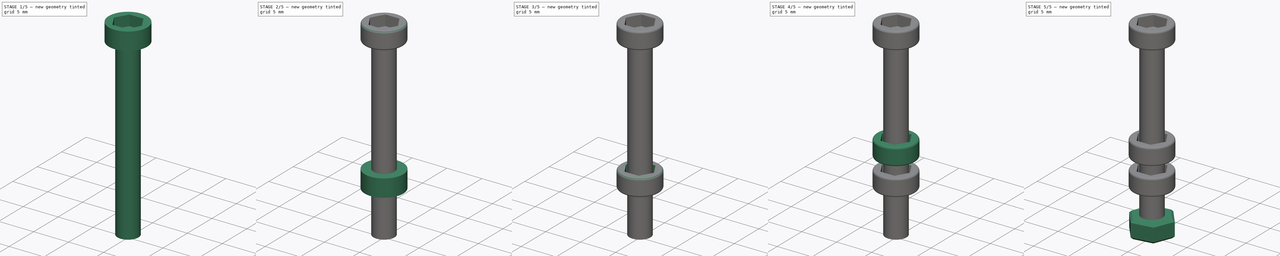
[diagram: build sequence overview — one tinted view per stage of 5, left to right]
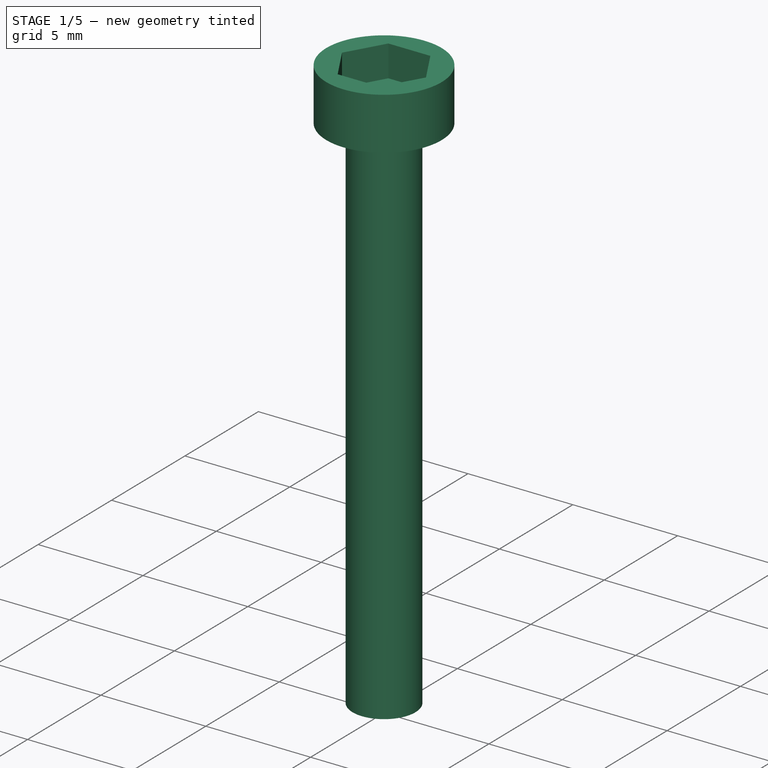
[diagram: stage 1 of 5 — iso view after this stage's code; geometry added in this stage tinted green]
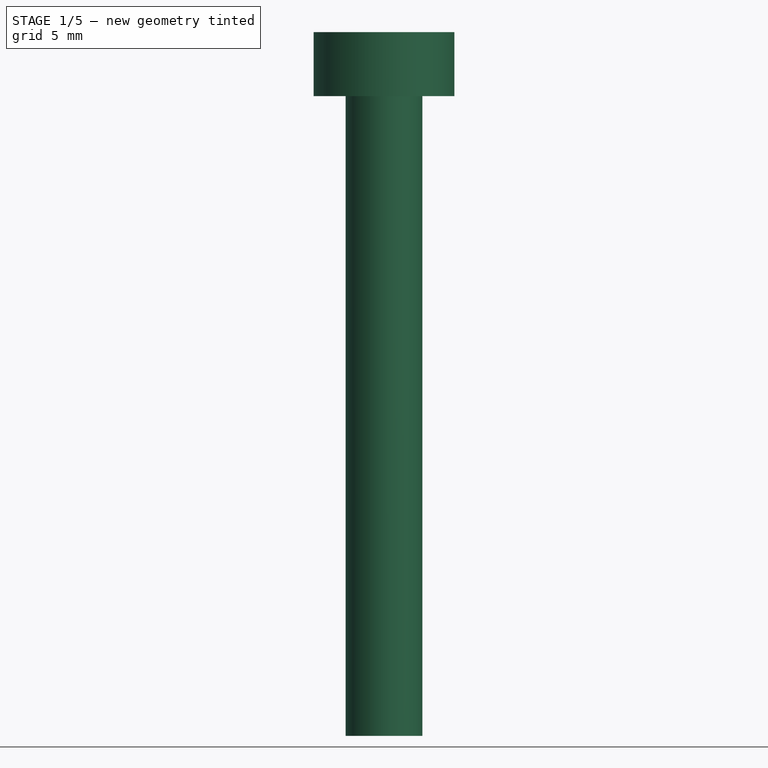
[diagram: stage 1 of 5 — front view after this stage's code; geometry added in this stage tinted green]
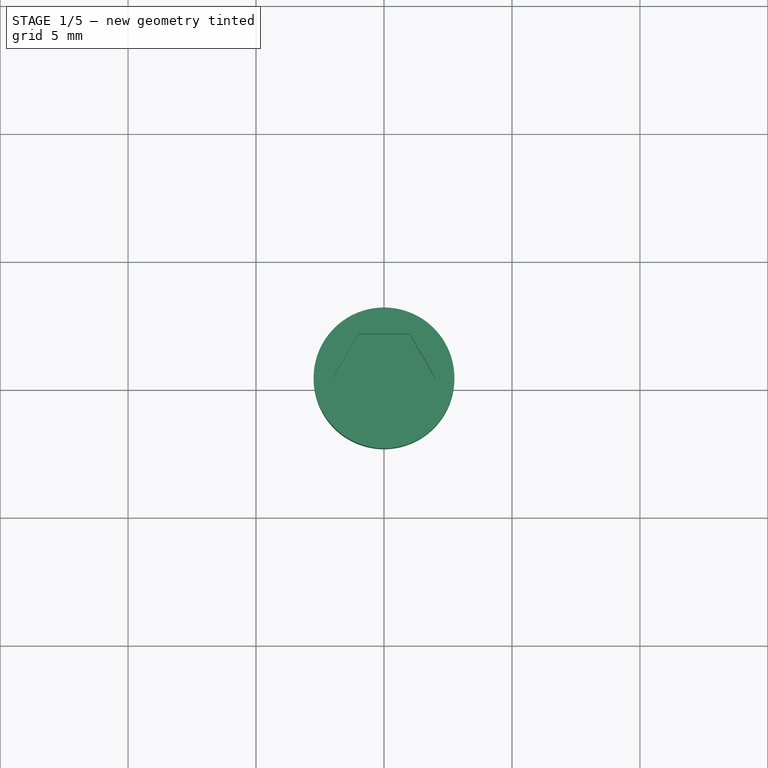
[diagram: stage 1 of 5 — top view after this stage's code; geometry added in this stage tinted green]
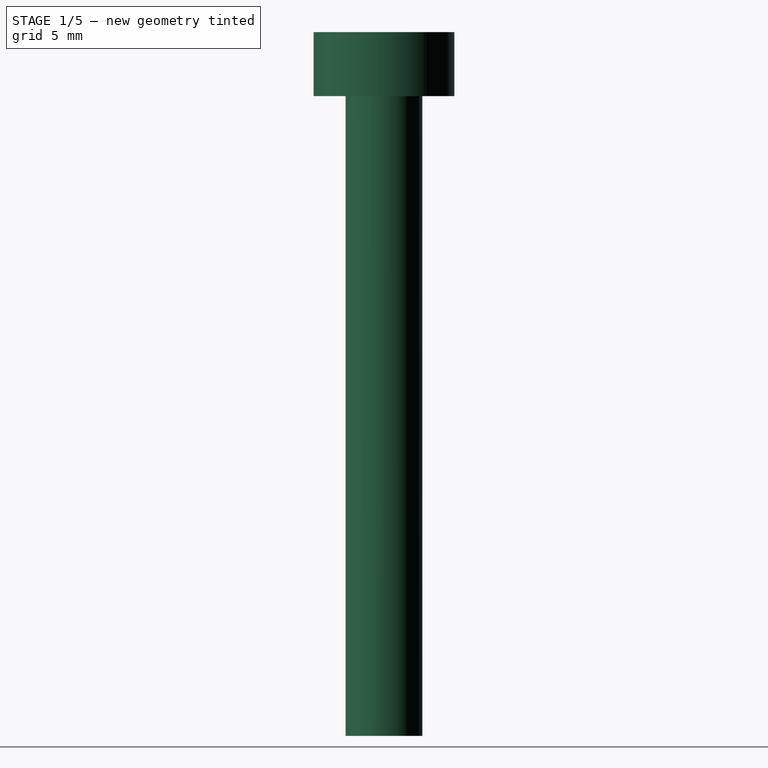
[diagram: stage 1 of 5 — right view after this stage's code; geometry added in this stage tinted green]
FCSTD DOCUMENT  (FreeCAD 0.18R4 (GitTag))
Label: M3_Screw
License: All rights reserved
LicenseURL: http://en.wikipedia.org/wiki/All_rights_reserved
objects: Sketcher::SketchObject×10, PartDesign::Pad×7, PartDesign::Body×4, PartDesign::Pocket×3, PartDesign::Fillet×3, PartDesign::Chamfer×2
note: 39 computed .brp shape members not serialized (recipe doc carries the construction recipe); baked Part::Feature solids carry a one-line shape summary decoded from their .brp

FEATURE [PartDesign::Body] Body002  label="M3_6mm"
  Group = -> [Sketch005,Pad004,Sketch006,Pad003,Sketch007,Pocket001,Fillet001]
  Origin = -> Origin002
  Tip = -> Fillet001
FEATURE [Sketcher::SketchObject] Sketch008
  MapMode = 5
  Support = -> [XY_Plane003]
  sketch-geometry (1):
    g0: Circle CenterX=0 CenterY=0 CenterZ=0 NormalX=0 NormalY=0 NormalZ=1 AngleXU=0 Radius=1.5
  constraints (2):
    c: Coincident(g0,g-1)
    c: Diameter(g0) = 3
FEATURE [PartDesign::Pad] Pad006
  Length = 25
  Length2 = 100
  Profile = -> Sketch008
  Type = 0
FEATURE [Sketcher::SketchObject] Sketch009
  MapMode = 5
  Placement = pos=(0,0,25) rot=(0,0,1;0rad)
  Support = -> [Pad006]
  sketch-geometry (1):
    g0: Circle CenterX=0 CenterY=0 CenterZ=0 NormalX=0 NormalY=0 NormalZ=1 AngleXU=0 Radius=2.75
  constraints (2):
    c: Diameter(g0) = 5.5
    c: Coincident(g0,g-1)
FEATURE [PartDesign::Pad] Pad005
  BaseFeature = -> Pad006
  Length = 2.5
  Length2 = 100
  Profile = -> Sketch009
  Type = 0
FEATURE [Sketcher::SketchObject] Sketch010
  MapMode = 5
  Placement = pos=(0,0,27.5) rot=(0,0,1;0rad)
  Support = -> [Pad005]
  sketch-geometry (7):
    g0: LineSegment StartX=2 StartY=0.00409436 StartZ=0 EndX=0.996452 EndY=1.73409 EndZ=0
    g1: LineSegment StartX=0.996452 StartY=1.73409 StartZ=0 EndX=-1.00354 EndY=1.73 EndZ=0
    g2: LineSegment StartX=-1.00354 StartY=1.73 StartZ=0 EndX=-2 EndY=-0.00409436 EndZ=0
    g3: LineSegment StartX=-2 StartY=-0.00409436 StartZ=0 EndX=-0.996452 EndY=-1.73409 EndZ=0
    g4: LineSegment StartX=-0.996452 StartY=-1.73409 StartZ=0 EndX=1.00354 EndY=-1.73 EndZ=0
    g5: LineSegment StartX=1.00354 StartY=-1.73 StartZ=0 EndX=2 EndY=0.00409436 EndZ=0
    g6: Circle [constr] CenterX=0 CenterY=0 CenterZ=0 NormalX=0 NormalY=0 NormalZ=1 AngleXU=0 Radius=2
  constraints (16):
    c: Coincident(g0,g1)
    c: Coincident(g1,g2)
    c: Coincident(g2,g3)
    c: Coincident(g3,g4)
    c: Coincident(g4,g5)
    c: Coincident(g5,g0)
    c: Equal(g0, g1-g5) x5
    c: PointOnObject(g0,g6)
    c: PointOnObject(g1,g6)
    c: PointOnObject(g2,g6)
    c: PointOnObject(g3,g6)
    c: PointOnObject(g4,g6)
    c: PointOnObject(g5,g6)
    c: Coincident(g6,g-1)
    c: Distance(g1) = 2
    c: Distance(g1,g-1) = 1.73
FEATURE [PartDesign::Pocket] Pocket002
  BaseFeature = -> Pad005
  Length = 1.5
  Length2 = 100
  Profile = -> Sketch010
  Type = 0
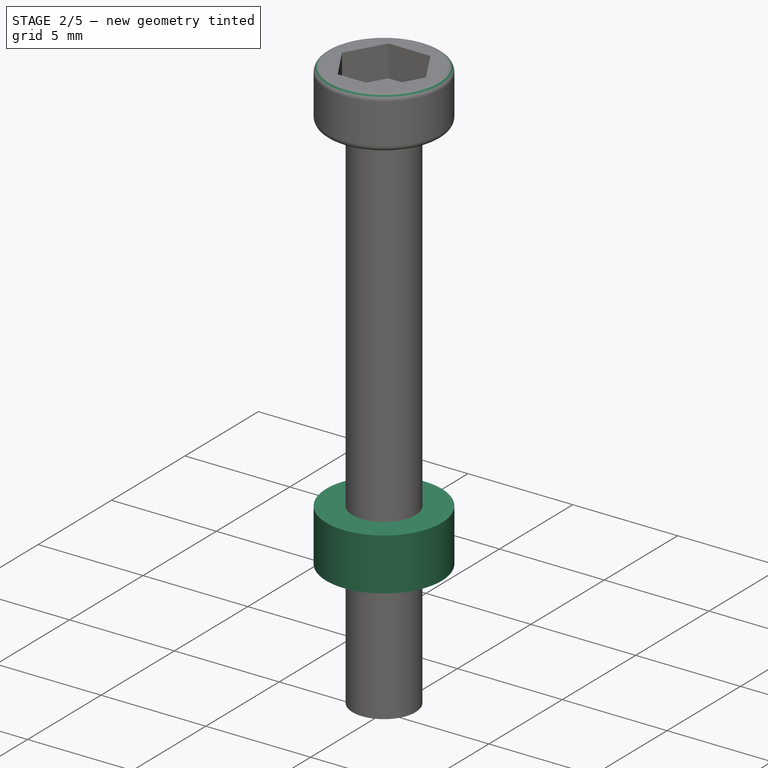
[diagram: stage 2 of 5 — iso view after this stage's code; geometry added in this stage tinted green]
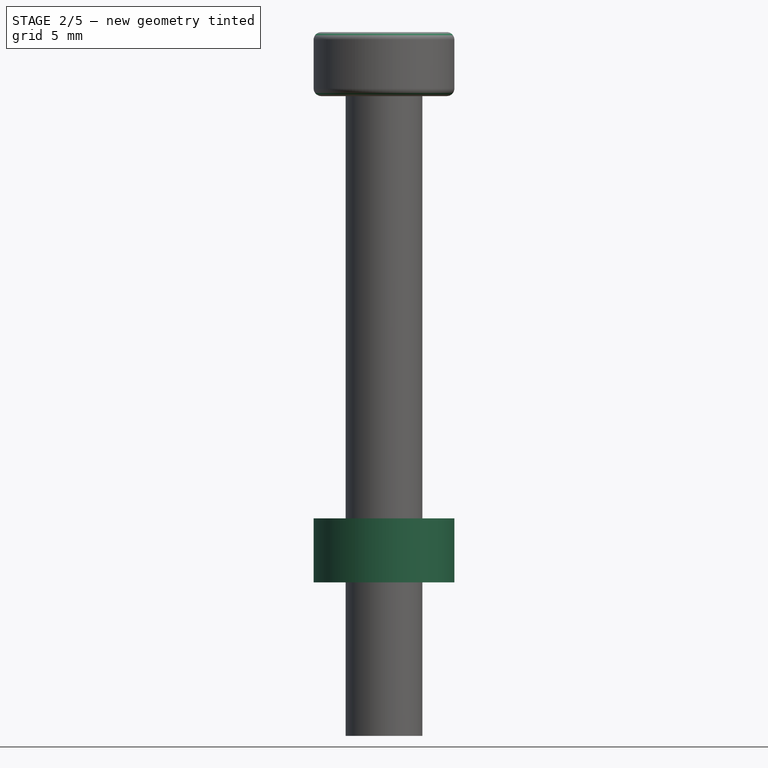
[diagram: stage 2 of 5 — front view after this stage's code; geometry added in this stage tinted green]
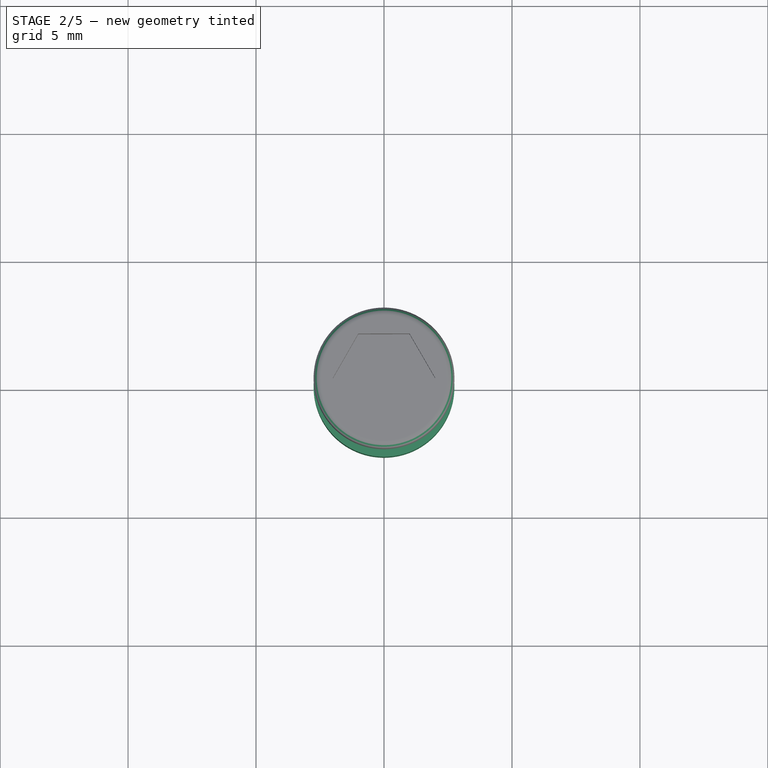
[diagram: stage 2 of 5 — top view after this stage's code; geometry added in this stage tinted green]
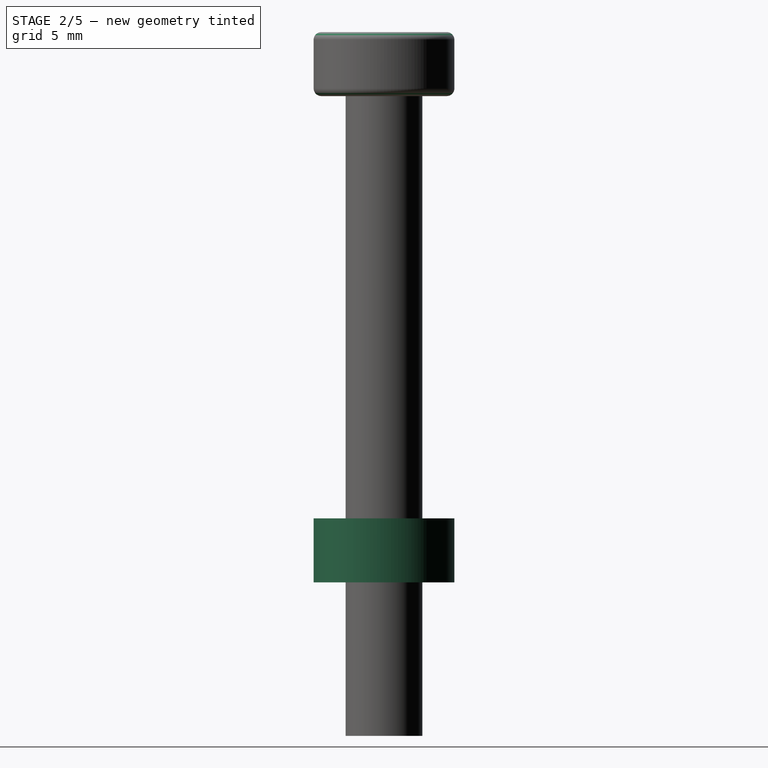
[diagram: stage 2 of 5 — right view after this stage's code; geometry added in this stage tinted green]
FEATURE [PartDesign::Body] Body  label="M3_10mm"
  Group = -> [Sketch,Pad,Sketch001,Pad001,Sketch002,Pocket,Fillet]
  Origin = -> Origin
  Tip = -> Fillet
FEATURE [Sketcher::SketchObject] Sketch005
  MapMode = 5
  Support = -> [XY_Plane002]
  sketch-geometry (1):
    g0: Circle CenterX=0 CenterY=0 CenterZ=0 NormalX=0 NormalY=0 NormalZ=1 AngleXU=0 Radius=1.5
  constraints (2):
    c: Coincident(g0,g-1)
    c: Diameter(g0) = 3
FEATURE [PartDesign::Pad] Pad004
  Length = 6
  Length2 = 100
  Profile = -> Sketch005
  Type = 0
FEATURE [Sketcher::SketchObject] Sketch006
  MapMode = 5
  Placement = pos=(0,0,6) rot=(0,0,1;0rad)
  Support = -> [Pad004]
  sketch-geometry (1):
    g0: Circle CenterX=0 CenterY=0 CenterZ=0 NormalX=0 NormalY=0 NormalZ=1 AngleXU=0 Radius=2.75
  constraints (2):
    c: Diameter(g0) = 5.5
    c: Coincident(g0,g-1)
FEATURE [PartDesign::Pad] Pad003
  BaseFeature = -> Pad004
  Length = 2.5
  Length2 = 100
  Profile = -> Sketch006
  Type = 0
FEATURE [PartDesign::Fillet] Fillet002
  Base = -> Pocket002 [Edge3,Edge2]
  BaseFeature = -> Pocket002
  Radius = 0.3
FEATURE [PartDesign::Body] Body003  label="M3_25mm"
  Group = -> [Sketch008,Pad006,Sketch009,Pad005,Sketch010,Pocket002,Fillet002]
  Origin = -> Origin003
  Tip = -> Fillet002
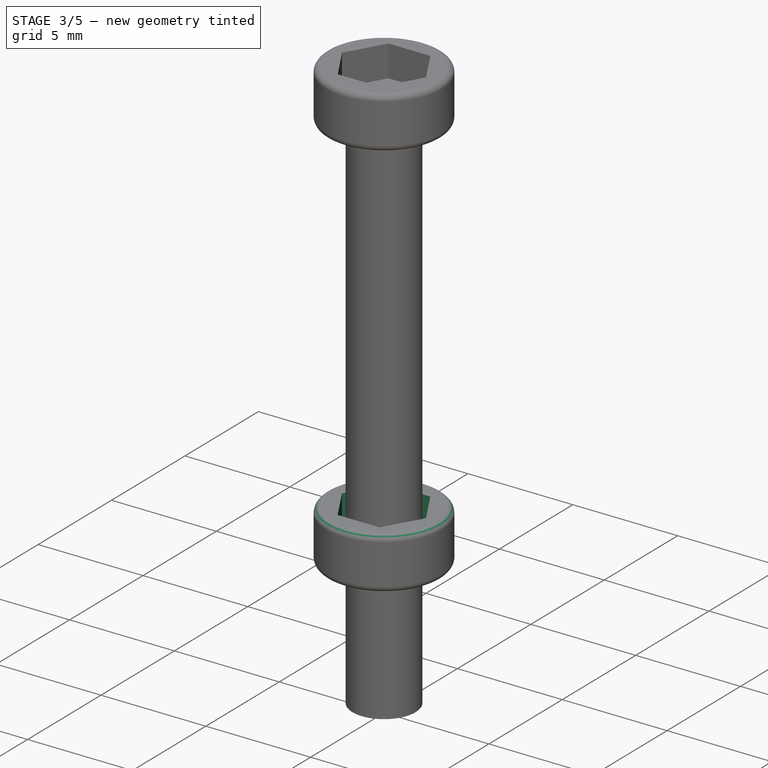
[diagram: stage 3 of 5 — iso view after this stage's code; geometry added in this stage tinted green]
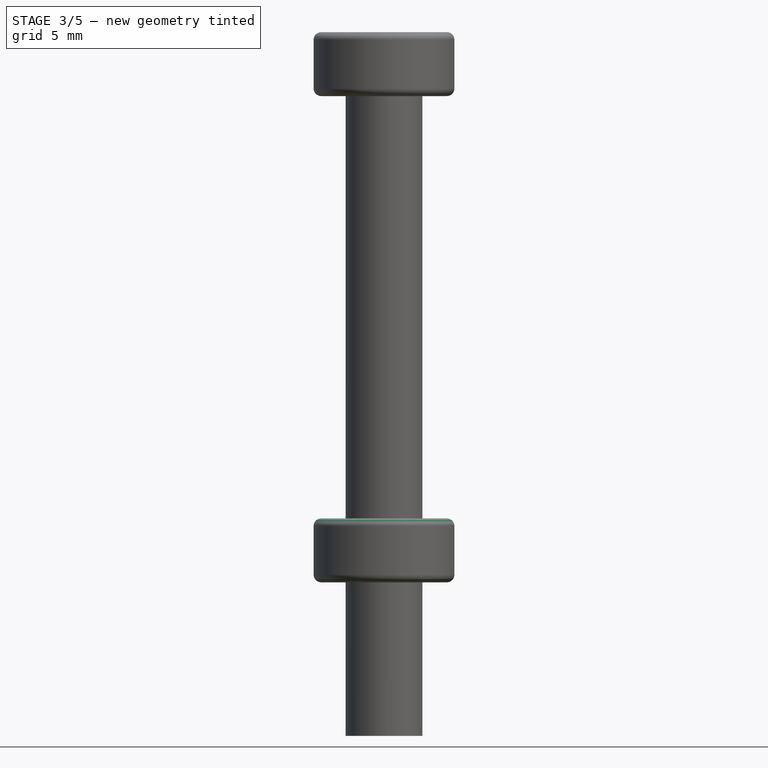
[diagram: stage 3 of 5 — front view after this stage's code; geometry added in this stage tinted green]
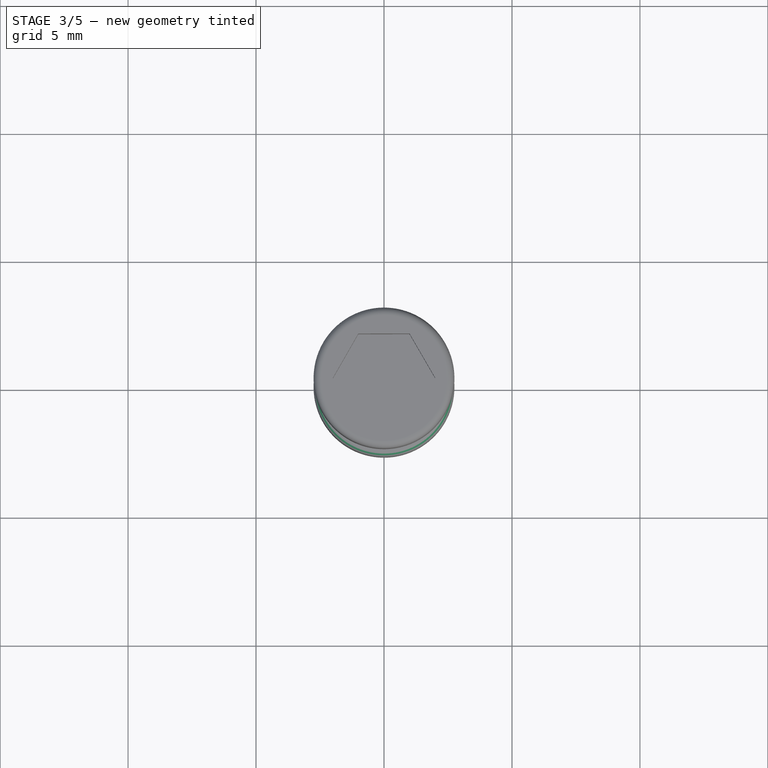
[diagram: stage 3 of 5 — top view after this stage's code; geometry added in this stage tinted green]
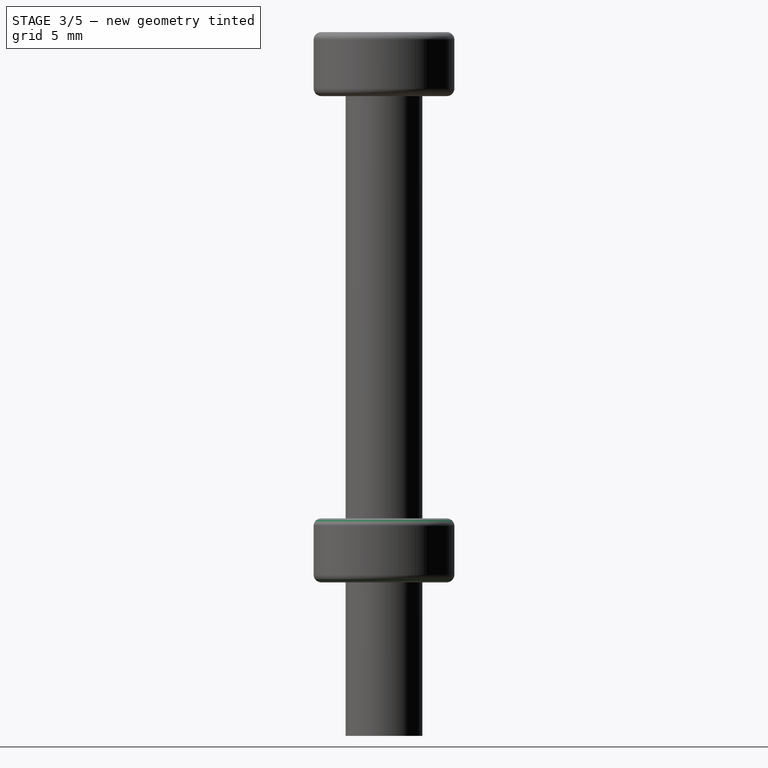
[diagram: stage 3 of 5 — right view after this stage's code; geometry added in this stage tinted green]
FEATURE [Sketcher::SketchObject] Sketch
  MapMode = 5
  Support = -> [XY_Plane]
  sketch-geometry (1):
    g0: Circle CenterX=0 CenterY=0 CenterZ=0 NormalX=0 NormalY=0 NormalZ=1 AngleXU=0 Radius=1.5
  constraints (2):
    c: Coincident(g0,g-1)
    c: Diameter(g0) = 3
FEATURE [PartDesign::Pad] Pad
  Length = 10
  Length2 = 100
  Profile = -> Sketch
  Type = 0
FEATURE [Sketcher::SketchObject] Sketch007
  MapMode = 5
  Placement = pos=(0,0,8.5) rot=(0,0,1;0rad)
  Support = -> [Pad003]
  sketch-geometry (7):
    g0: LineSegment StartX=2 StartY=0.00409436 StartZ=0 EndX=0.996452 EndY=1.73409 EndZ=0
    g1: LineSegment StartX=0.996452 StartY=1.73409 StartZ=0 EndX=-1.00354 EndY=1.73 EndZ=0
    g2: LineSegment StartX=-1.00354 StartY=1.73 StartZ=0 EndX=-2 EndY=-0.00409436 EndZ=0
    g3: LineSegment StartX=-2 StartY=-0.00409436 StartZ=0 EndX=-0.996452 EndY=-1.73409 EndZ=0
    g4: LineSegment StartX=-0.996452 StartY=-1.73409 StartZ=0 EndX=1.00354 EndY=-1.73 EndZ=0
    g5: LineSegment StartX=1.00354 StartY=-1.73 StartZ=0 EndX=2 EndY=0.00409436 EndZ=0
    g6: Circle [constr] CenterX=0 CenterY=0 CenterZ=0 NormalX=0 NormalY=0 NormalZ=1 AngleXU=0 Radius=2
  constraints (16):
    c: Coincident(g0,g1)
    c: Coincident(g1,g2)
    c: Coincident(g2,g3)
    c: Coincident(g3,g4)
    c: Coincident(g4,g5)
    c: Coincident(g5,g0)
    c: Equal(g0, g1-g5) x5
    c: PointOnObject(g0,g6)
    c: PointOnObject(g1,g6)
    c: PointOnObject(g2,g6)
    c: PointOnObject(g3,g6)
    c: PointOnObject(g4,g6)
    c: PointOnObject(g5,g6)
    c: Coincident(g6,g-1)
    c: Distance(g1) = 2
    c: Distance(g1,g-1) = 1.73
FEATURE [PartDesign::Pocket] Pocket001
  BaseFeature = -> Pad003
  Length = 1.5
  Length2 = 100
  Profile = -> Sketch007
  Type = 0
FEATURE [PartDesign::Fillet] Fillet001
  Base = -> Pocket001 [Edge3,Edge2]
  BaseFeature = -> Pocket001
  Radius = 0.3
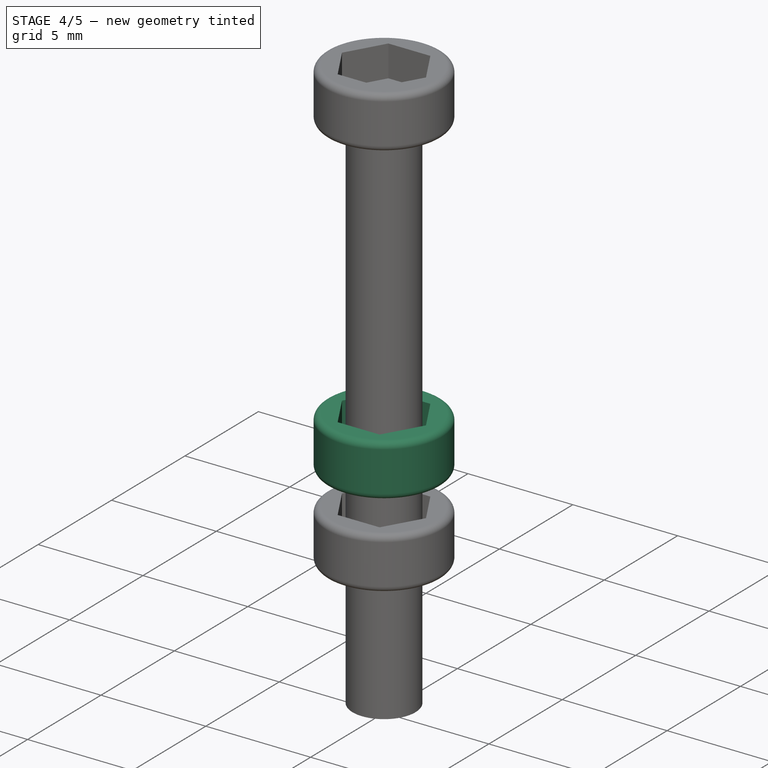
[diagram: stage 4 of 5 — iso view after this stage's code; geometry added in this stage tinted green]
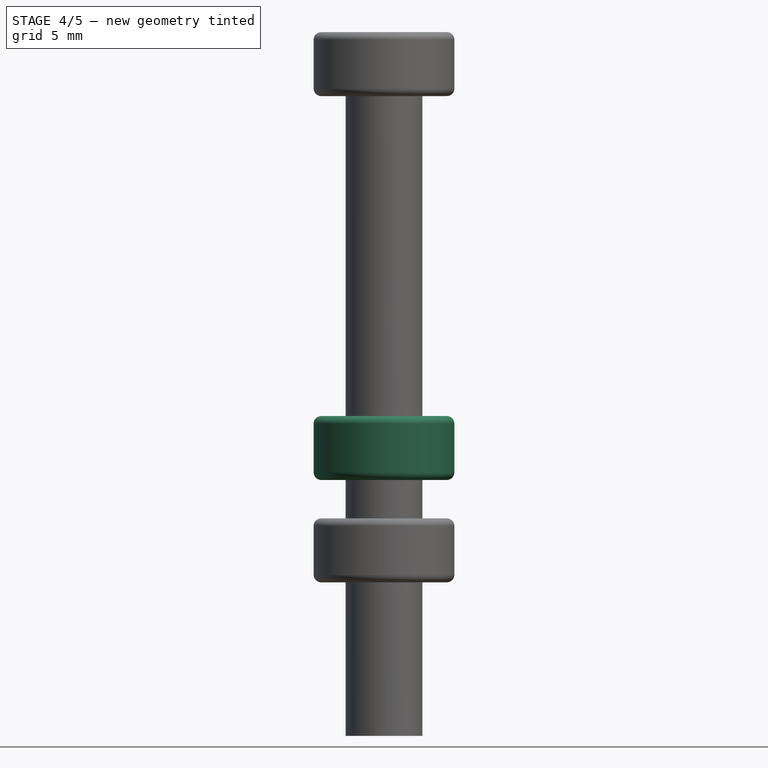
[diagram: stage 4 of 5 — front view after this stage's code; geometry added in this stage tinted green]
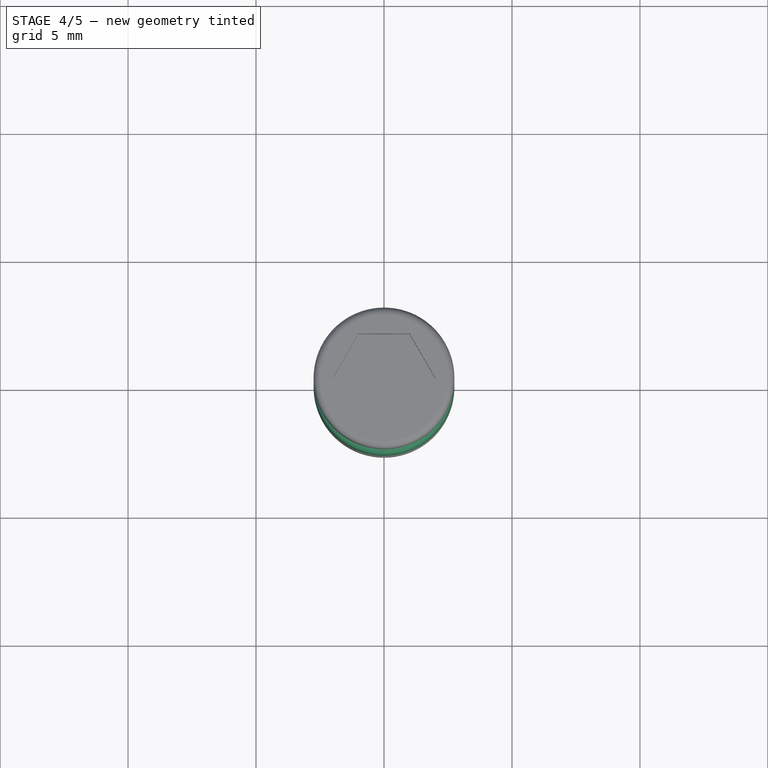
[diagram: stage 4 of 5 — top view after this stage's code; geometry added in this stage tinted green]
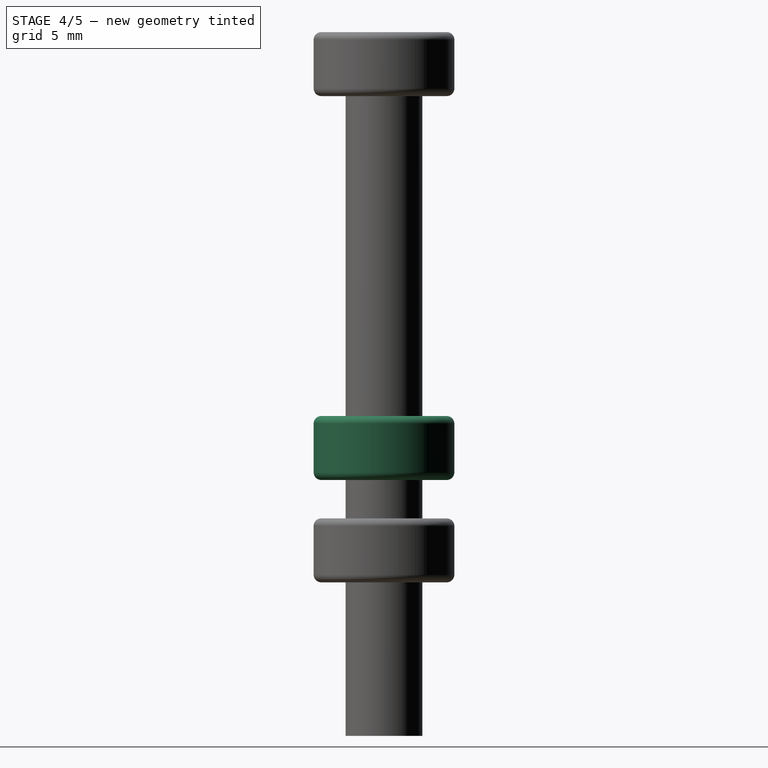
[diagram: stage 4 of 5 — right view after this stage's code; geometry added in this stage tinted green]
FEATURE [Sketcher::SketchObject] Sketch001
  MapMode = 5
  Placement = pos=(0,0,10) rot=(0,0,1;0rad)
  Support = -> [Pad]
  sketch-geometry (1):
    g0: Circle CenterX=0 CenterY=0 CenterZ=0 NormalX=0 NormalY=0 NormalZ=1 AngleXU=0 Radius=2.75
  constraints (2):
    c: Diameter(g0) = 5.5
    c: Coincident(g0,g-1)
FEATURE [PartDesign::Pad] Pad001
  BaseFeature = -> Pad
  Length = 2.5
  Length2 = 100
  Profile = -> Sketch001
  Type = 0
FEATURE [PartDesign::Body] Body001  label="M3_Nut"
  Group = -> [Sketch004,Pad002,Chamfer001,Chamfer002]
  Origin = -> Origin001
  Tip = -> Chamfer002
FEATURE [PartDesign::Pocket] Pocket
  BaseFeature = -> Pad001
  Length = 1.5
  Length2 = 100
  Profile = -> Sketch002
  Type = 0
FEATURE [PartDesign::Fillet] Fillet
  Base = -> Pocket [Edge3,Edge2]
  BaseFeature = -> Pocket
  Radius = 0.3
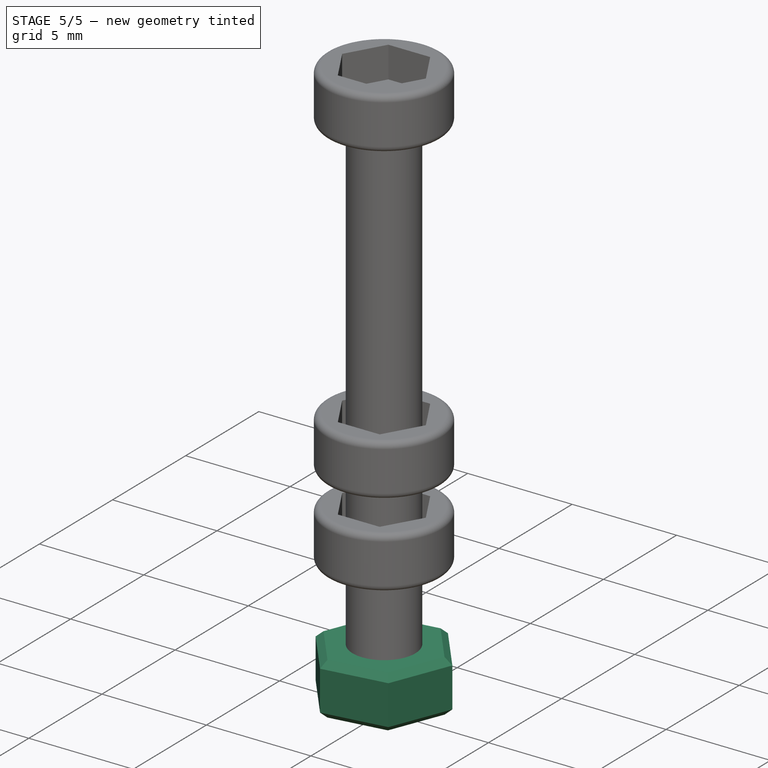
[diagram: stage 5 of 5 — iso view after this stage's code; geometry added in this stage tinted green]
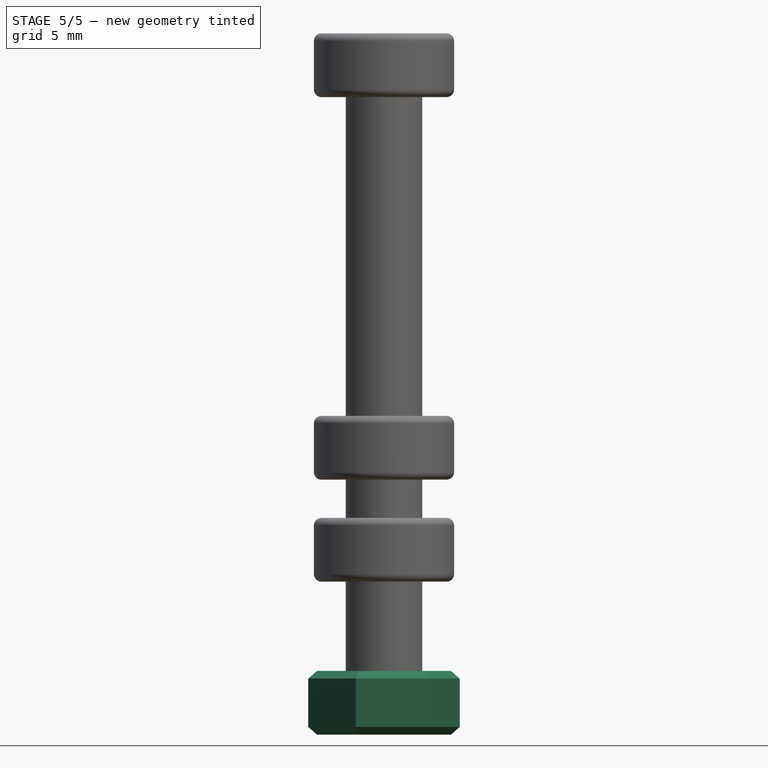
[diagram: stage 5 of 5 — front view after this stage's code; geometry added in this stage tinted green]
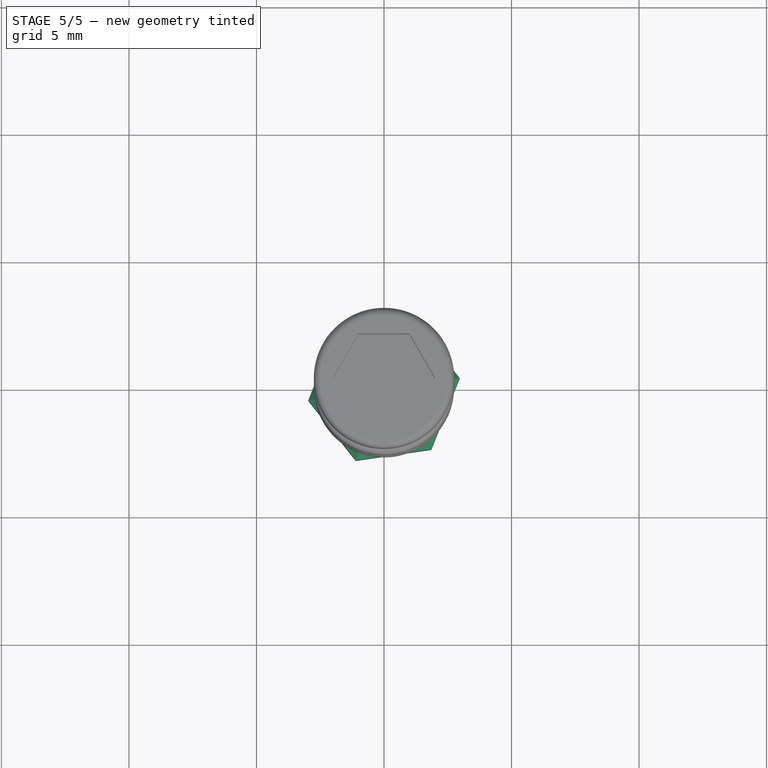
[diagram: stage 5 of 5 — top view after this stage's code; geometry added in this stage tinted green]
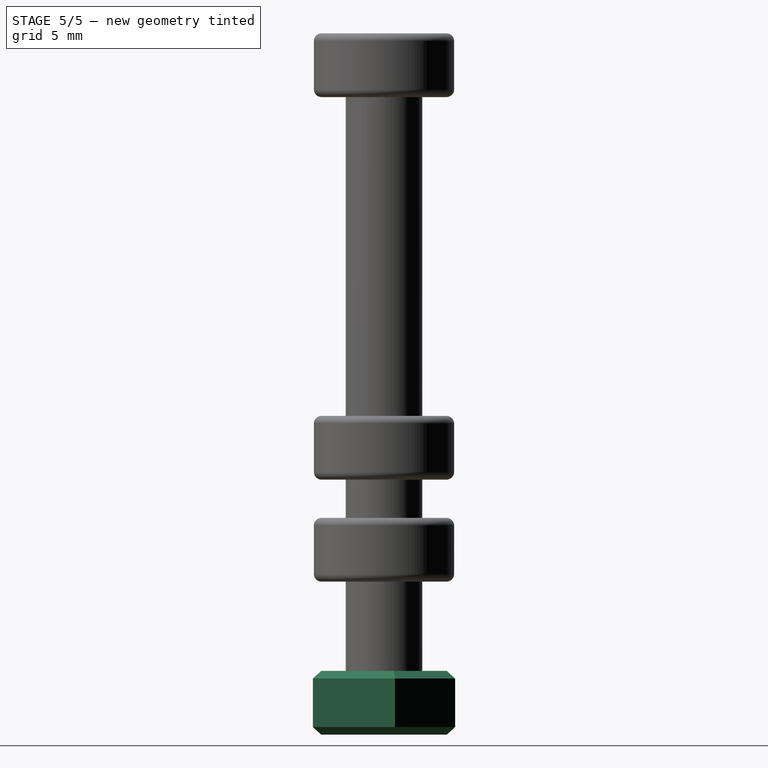
[diagram: stage 5 of 5 — right view after this stage's code; geometry added in this stage tinted green]
FEATURE [Sketcher::SketchObject] Sketch002
  MapMode = 5
  Placement = pos=(0,0,12.5) rot=(0,0,1;0rad)
  Support = -> [Pad001]
  sketch-geometry (7):
    g0: LineSegment StartX=2 StartY=0.00409436 StartZ=0 EndX=0.996452 EndY=1.73409 EndZ=0
    g1: LineSegment StartX=0.996452 StartY=1.73409 StartZ=0 EndX=-1.00354 EndY=1.73 EndZ=0
    g2: LineSegment StartX=-1.00354 StartY=1.73 StartZ=0 EndX=-2 EndY=-0.00409436 EndZ=0
    g3: LineSegment StartX=-2 StartY=-0.00409436 StartZ=0 EndX=-0.996452 EndY=-1.73409 EndZ=0
    g4: LineSegment StartX=-0.996452 StartY=-1.73409 StartZ=0 EndX=1.00354 EndY=-1.73 EndZ=0
    g5: LineSegment StartX=1.00354 StartY=-1.73 StartZ=0 EndX=2 EndY=0.00409436 EndZ=0
    g6: Circle [constr] CenterX=0 CenterY=0 CenterZ=0 NormalX=0 NormalY=0 NormalZ=1 AngleXU=0 Radius=2
  constraints (16):
    c: Coincident(g0,g1)
    c: Coincident(g1,g2)
    c: Coincident(g2,g3)
    c: Coincident(g3,g4)
    c: Coincident(g4,g5)
    c: Coincident(g5,g0)
    c: Equal(g0, g1-g5) x5
    c: PointOnObject(g0,g6)
    c: PointOnObject(g1,g6)
    c: PointOnObject(g2,g6)
    c: PointOnObject(g3,g6)
    c: PointOnObject(g4,g6)
    c: PointOnObject(g5,g6)
    c: Coincident(g6,g-1)
    c: Distance(g1) = 2
    c: Distance(g1,g-1) = 1.73
FEATURE [Sketcher::SketchObject] Sketch004
  MapMode = 5
  Support = -> [XY_Plane001]
  sketch-geometry (8):
    g0: LineSegment StartX=1.10896 StartY=2.78751 StartZ=0 EndX=-1.85958 EndY=2.35414 EndZ=0
    g1: LineSegment StartX=-1.85958 StartY=2.35414 StartZ=0 EndX=-2.96853 EndY=-0.433371 EndZ=0
    g2: LineSegment StartX=-2.96853 StartY=-0.433371 StartZ=0 EndX=-1.10896 EndY=-2.78751 EndZ=0
    g3: LineSegment StartX=-1.10896 StartY=-2.78751 StartZ=0 EndX=1.85958 EndY=-2.35414 EndZ=0
    g4: LineSegment StartX=1.85958 StartY=-2.35414 StartZ=0 EndX=2.96853 EndY=0.433371 EndZ=0
    g5: LineSegment StartX=2.96853 StartY=0.433371 StartZ=0 EndX=1.10896 EndY=2.78751 EndZ=0
    g6: Circle [constr] CenterX=0 CenterY=0 CenterZ=0 NormalX=0 NormalY=0 NormalZ=1 AngleXU=0 Radius=3
    g7: Circle CenterX=0 CenterY=0 CenterZ=0 NormalX=0 NormalY=0 NormalZ=1 AngleXU=0 Radius=1.5
  constraints (17):
    c: Coincident(g0,g1)
    c: Coincident(g1,g2)
    c: Coincident(g2,g3)
    c: Coincident(g3,g4)
    c: Coincident(g4,g5)
    c: Coincident(g5,g0)
    c: Equal(g0, g1-g5) x5
    c: PointOnObject(g0,g6)
    c: PointOnObject(g1,g6)
    c: PointOnObject(g2,g6)
    c: PointOnObject(g3,g6)
    c: PointOnObject(g4,g6)
    c: PointOnObject(g5,g6)
    c: Distance(g0) = 3
    c: Coincident(g6,g-1)
    c: Diameter(g7) = 3
    c: Coincident(g7,g-1)
FEATURE [PartDesign::Pad] Pad002
  Length = 2.5
  Length2 = 100
  Profile = -> Sketch004
  Type = 0
FEATURE [PartDesign::Chamfer] Chamfer001
  Base = -> Pad002 [Edge9,Edge12,Edge15,Edge17,Edge3,Edge6]
  BaseFeature = -> Pad002
  Size = 0.3
FEATURE [PartDesign::Chamfer] Chamfer002
  Base = -> Chamfer001 [Edge13,Edge12,Edge11,Edge3,Edge7,Edge14]
  BaseFeature = -> Chamfer001
  Size = 0.3
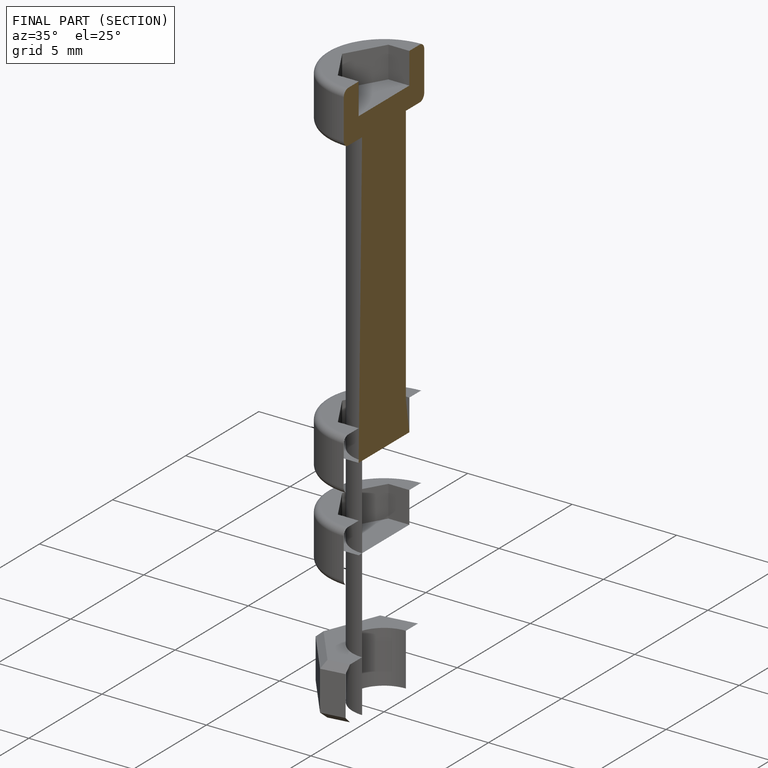
[diagram: finished part — half-section view (interior)]
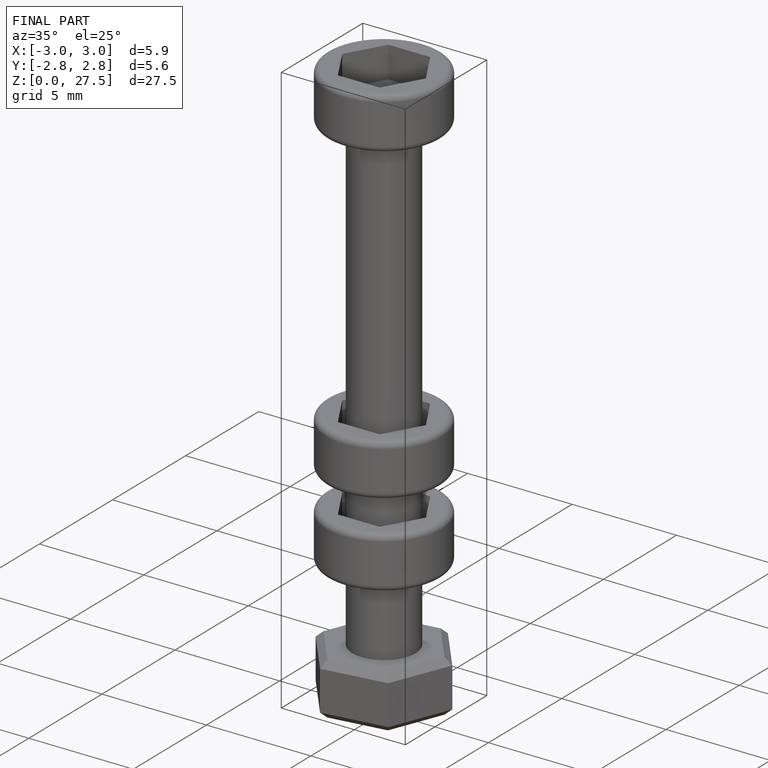
[diagram: finished part — iso view with bounding-box wireframe]
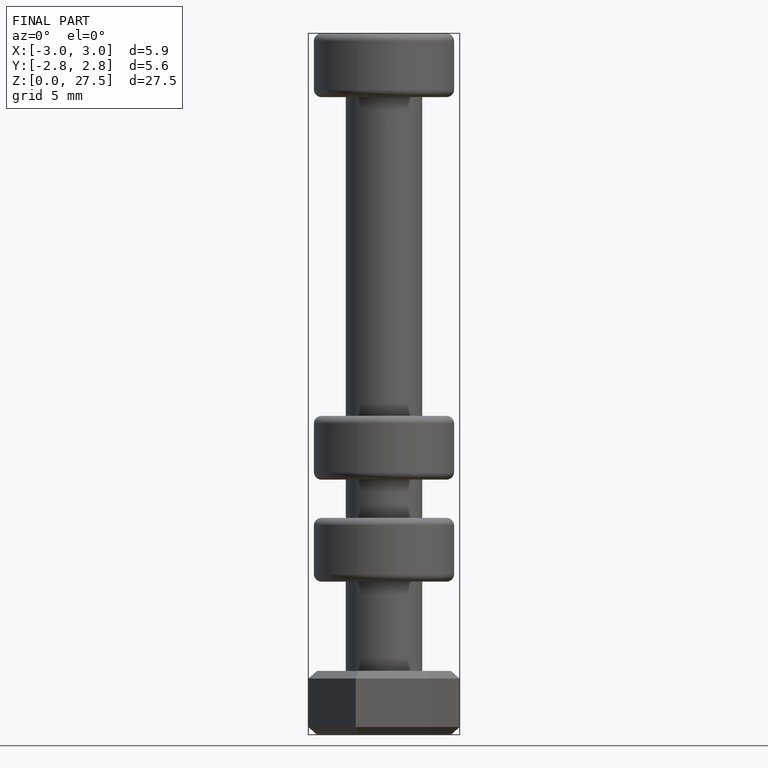
[diagram: finished part — front view with bounding-box wireframe]
